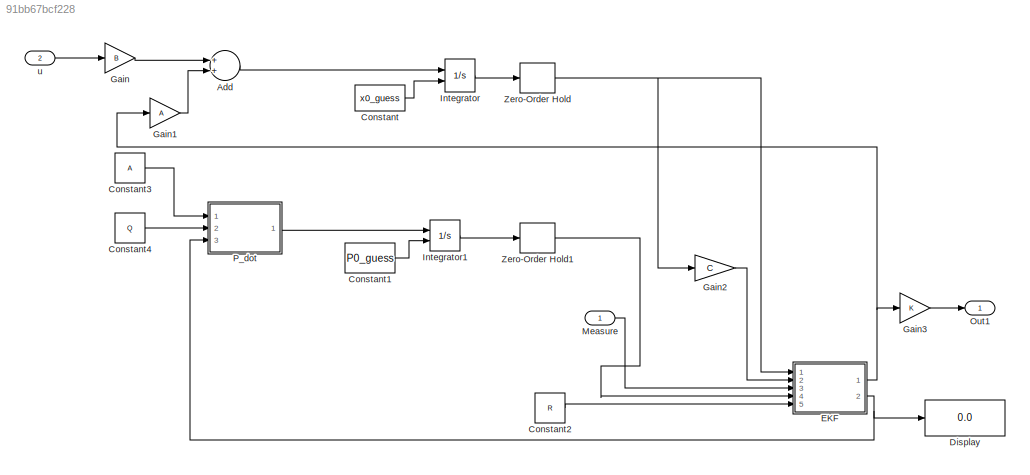
MODEL slx_91bb67bcf228
KIND model
BLOCK [Sum] Add
  InputSameDT = off
  OutDataTypeStr = Inherit: Inherit via internal rule
  Ports = [2, 1]
  SaturateOnIntegerOverflow = off
BLOCK [Constant] Constant
  Value = x0_guess
BLOCK [Constant] Constant1
  Value = P0_guess
BLOCK [Constant] Constant2
  Value = R
BLOCK [Constant] Constant3
  Value = A
BLOCK [Constant] Constant4
  Value = Q
BLOCK [Display] Display
  Decimation = 1
  Lockdown = off
  Ports = [1]
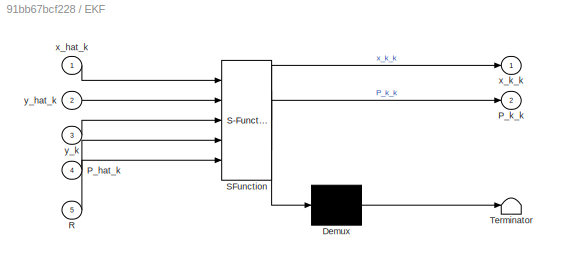
BLOCK [SubSystem] EKF
  ErrorFcn = Stateflow.Translate.translate
  FunctionWithSeparateData = off
  MaskHideContents = off
  MinAlgLoopOccurrences = off
  Opaque = off
  PermitHierarchicalResolution = ExplicitOnly
  Ports = [5, 2]
  PropExecContextOutsideSubsystem = off
  RTWSystemCode = Auto
  RequestExecContextInheritance = off
  SFBlockType = MATLAB Function
  TreatAsAtomicUnit = on
BLOCK [Demux] EKF/ Demux 
  Outputs = 1
  Ports = [1, 1]
BLOCK [S-Function] EKF/ SFunction 
  EnableBusSupport = on
  FunctionName = sf_sfun
  PortCounts = [5 3]
  Ports = [5, 3]
  Tag = Stateflow S-Function ekf_djax_1 2
BLOCK [Terminator] EKF/ Terminator 
BLOCK [Inport] EKF/P_hat_k
  IconDisplay = Port number
  Port = 4
BLOCK [Outport] EKF/P_k_k
  IconDisplay = Port number
  Port = 2
BLOCK [Inport] EKF/R
  IconDisplay = Port number
  Port = 5
BLOCK [Inport] EKF/x_hat_k
  IconDisplay = Port number
BLOCK [Outport] EKF/x_k_k
  IconDisplay = Port number
BLOCK [Inport] EKF/y_hat_k
  IconDisplay = Port number
  Port = 2
BLOCK [Inport] EKF/y_k
  IconDisplay = Port number
  Port = 3
BLOCK [Gain] Gain
  Gain = B
  Multiplication = Matrix(K*u)
  OutDataTypeStr = Inherit: Inherit via internal rule
  ParamDataTypeStr = Inherit: Inherit via internal rule
  SaturateOnIntegerOverflow = off
BLOCK [Gain] Gain1
  Gain = A
  Multiplication = Matrix(K*u)
  OutDataTypeStr = Inherit: Inherit via internal rule
  ParamDataTypeStr = Inherit: Inherit via internal rule
  SaturateOnIntegerOverflow = off
BLOCK [Gain] Gain2
  Gain = C
  Multiplication = Matrix(K*u)
  OutDataTypeStr = Inherit: Inherit via internal rule
  ParamDataTypeStr = Inherit: Inherit via internal rule
  SaturateOnIntegerOverflow = off
BLOCK [Gain] Gain3
  OutDataTypeStr = Inherit: Inherit via internal rule
  ParamDataTypeStr = Inherit: Inherit via internal rule
  SaturateOnIntegerOverflow = off
BLOCK [Integrator] Integrator
  InitialConditionSource = external
  Ports = [2, 1]
BLOCK [Integrator] Integrator1
  InitialConditionSource = external
  Ports = [2, 1]
BLOCK [Inport] Measure
  IconDisplay = Port number
BLOCK [Outport] Out1
  IconDisplay = Port number
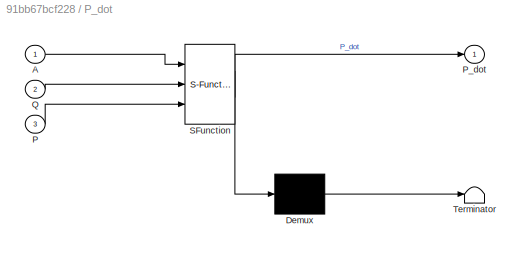
BLOCK [SubSystem] P_dot
  ErrorFcn = Stateflow.Translate.translate
  FunctionWithSeparateData = off
  MaskHideContents = off
  MinAlgLoopOccurrences = off
  Opaque = off
  PermitHierarchicalResolution = ExplicitOnly
  Ports = [3, 1]
  PropExecContextOutsideSubsystem = off
  RTWSystemCode = Auto
  RequestExecContextInheritance = off
  SFBlockType = MATLAB Function
  TreatAsAtomicUnit = on
BLOCK [Demux] P_dot/ Demux 
  Outputs = 1
  Ports = [1, 1]
BLOCK [S-Function] P_dot/ SFunction 
  EnableBusSupport = on
  FunctionName = sf_sfun
  PortCounts = [3 2]
  Ports = [3, 2]
  Tag = Stateflow S-Function ekf_djax_1 1
BLOCK [Terminator] P_dot/ Terminator 
BLOCK [Inport] P_dot/A
  IconDisplay = Port number
BLOCK [Inport] P_dot/P
  IconDisplay = Port number
  Port = 3
BLOCK [Outport] P_dot/P_dot
  IconDisplay = Port number
BLOCK [Inport] P_dot/Q
  IconDisplay = Port number
  Port = 2
BLOCK [ZeroOrderHold] Zero-Order Hold
BLOCK [ZeroOrderHold] Zero-Order Hold1
BLOCK [Inport] u
  IconDisplay = Port number
  Port = 2
LINE Add:1 -> Integrator:1
LINE Constant1:1 -> Integrator1:2
LINE Constant2:1 -> EKF:5
LINE Constant3:1 -> P_dot:1
LINE Constant4:1 -> P_dot:2
LINE Constant:1 -> Integrator:2
NET EKF:1 -> Gain1:1, Gain3:1
NET EKF:2 -> Display:1, P_dot:3
LINE Gain1:1 -> Add:2
LINE Gain2:1 -> EKF:2
LINE Gain3:1 -> Out1:1
LINE Gain:1 -> Add:1
LINE Integrator1:1 -> Zero-Order Hold1:1
LINE Integrator:1 -> Zero-Order Hold:1
LINE Measure:1 -> EKF:3
LINE P_dot:1 -> Integrator1:1
LINE Zero-Order Hold1:1 -> EKF:4
NET Zero-Order Hold:1 -> EKF:1, Gain2:1
LINE u:1 -> Gain:1
note: NET lines group one-source signal fan-out (src -> all destinations, sorted); 1:1 wires keep LINE
